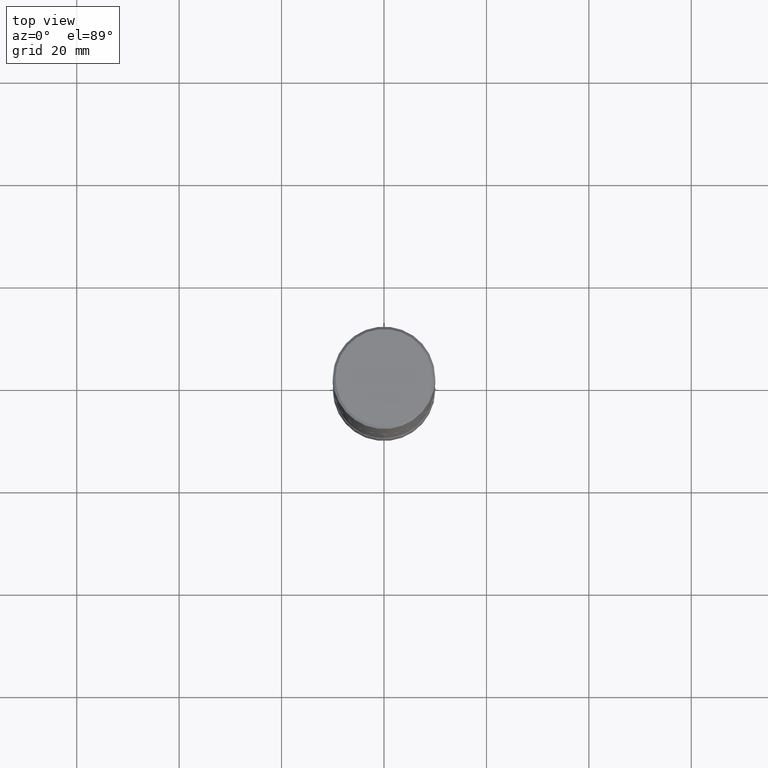
[diagram: clean part render]
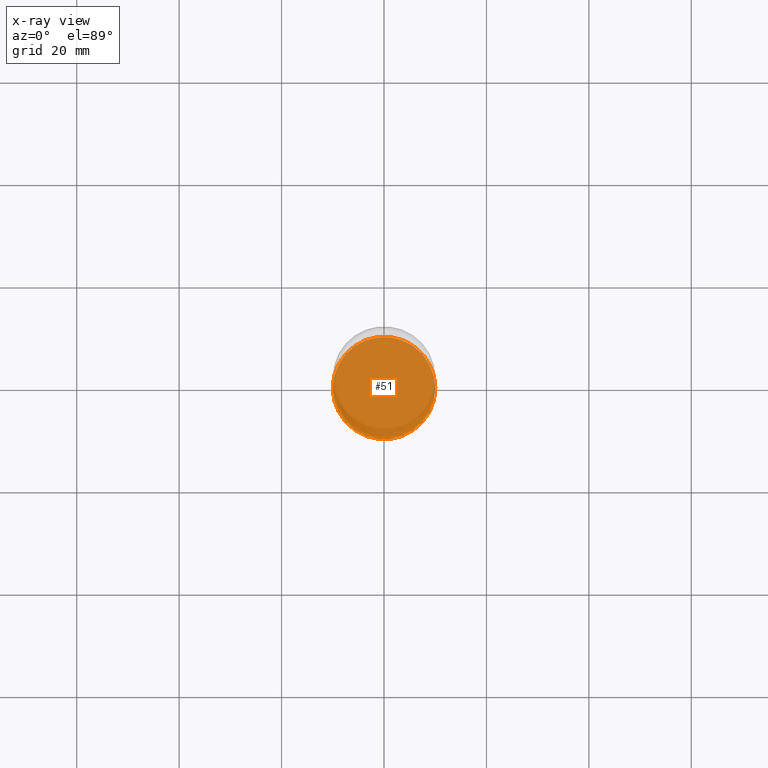
[diagram: x-ray — body ghosted, one internal face saturated and labeled with its STEP entity id]
A machine part, top view, then the same camera in x-ray: the body is ghosted and one INTERNAL B-rep face — a face not visible from any outside direction — is saturated and labeled: STEP entity #51.
In plain terms, the highlighted planar face has unit normal (0, -0, -1).
Its self-contained STEP definition (entity closure, byte-faithful):
#3 = EDGE_CURVE ( 'NONE', #74, #17, #419, .T. ) ;
#17 = VERTEX_POINT ( 'NONE', #467 ) ;
#19 = DIRECTION ( 'NONE',  ( -2.445468806185136597E-29, 3.491481338843145583E-15, 1.000000000000000000 ) ) ;
#51 = ADVANCED_FACE ( 'NONE', ( #417 ), #474, .F. ) ;
#68 = EDGE_LOOP ( 'NONE', ( #508, #196 ) ) ;
#74 = VERTEX_POINT ( 'NONE', #82 ) ;
#77 = CIRCLE ( 'NONE', #310, 0.3937000000000003830 ) ;
#82 = CARTESIAN_POINT ( 'NONE',  ( -0.3937000000000003830, -1.445365339640257918E-14, -4.566900000000000404 ) ) ;
#120 = CARTESIAN_POINT ( 'NONE',  ( 1.116821149096690103E-28, -1.594524612636276117E-14, -4.566900000000000404 ) ) ;
#153 = DIRECTION ( 'NONE',  ( -2.445468806185136597E-29, 3.491481338843145583E-15, 1.000000000000000000 ) ) ;
#196 = ORIENTED_EDGE ( 'NONE', *, *, #3, .T. ) ;
#205 = EDGE_CURVE ( 'NONE', #17, #74, #77, .T. ) ;
#256 = DIRECTION ( 'NONE',  ( 2.438088387897960049E-29, -3.491481338843145188E-15, -1.000000000000000000 ) ) ;
#305 = CARTESIAN_POINT ( 'NONE',  ( 1.116821149096690103E-28, -1.594524612636276117E-14, -4.566900000000000404 ) ) ;
#310 = AXIS2_PLACEMENT_3D ( 'NONE', #395, #19, #367 ) ;
#337 = DIRECTION ( 'NONE',  ( -1.000000000000000000, 6.982962677686265922E-15, -4.876176775795935793E-29 ) ) ;
#367 = DIRECTION ( 'NONE',  ( 1.000000000000000000, -6.982962677686261977E-15, 0.000000000000000000 ) ) ;
#382 = AXIS2_PLACEMENT_3D ( 'NONE', #120, #153, #462 ) ;
#395 = CARTESIAN_POINT ( 'NONE',  ( 1.116821149096690103E-28, -1.594524612636276117E-14, -4.566900000000000404 ) ) ;
#417 = FACE_OUTER_BOUND ( 'NONE', #68, .T. ) ;
#419 = CIRCLE ( 'NONE', #382, 0.3937000000000003830 ) ;
#462 = DIRECTION ( 'NONE',  ( 1.000000000000000000, -6.982962677686261977E-15, 0.000000000000000000 ) ) ;
#467 = CARTESIAN_POINT ( 'NONE',  ( 0.3937000000000003830, -1.869443853256784755E-14, -4.566900000000000404 ) ) ;
#474 = PLANE ( 'NONE',  #537 ) ;
#508 = ORIENTED_EDGE ( 'NONE', *, *, #205, .T. ) ;
#537 = AXIS2_PLACEMENT_3D ( 'NONE', #305, #256, #337 ) ;